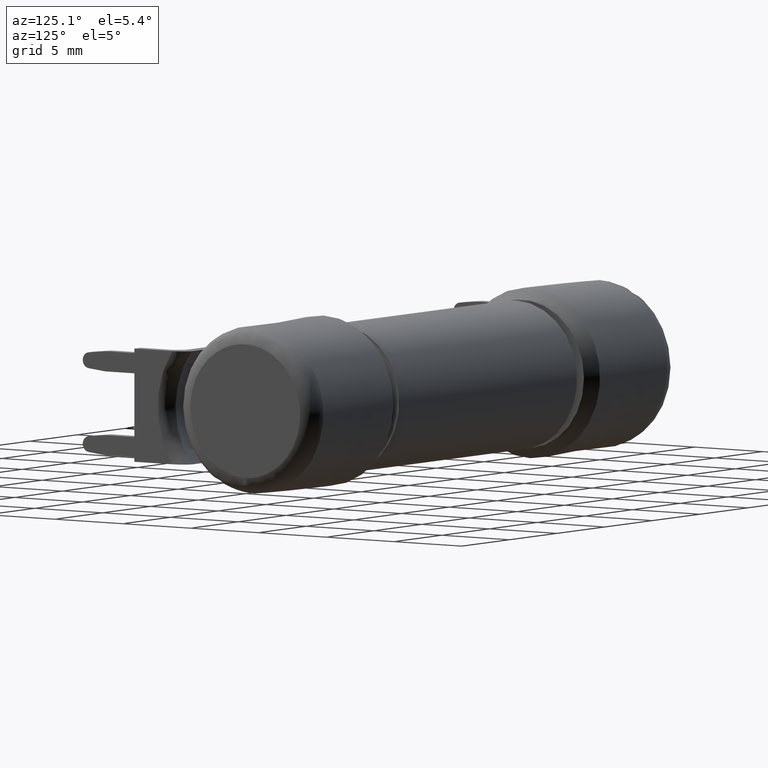
[diagram: clean part render]
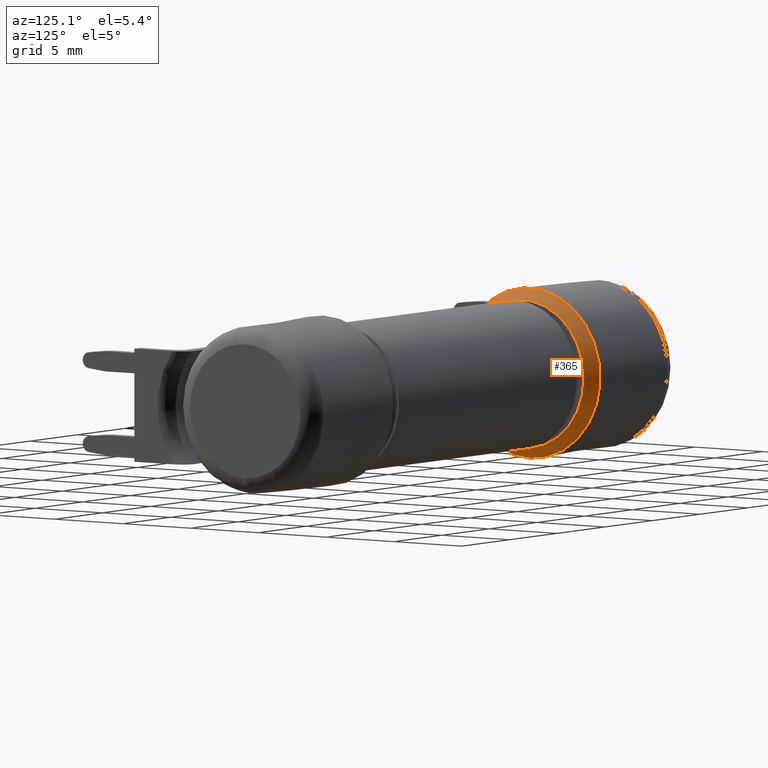
[diagram: same view with one face highlighted and labeled with its STEP entity id]
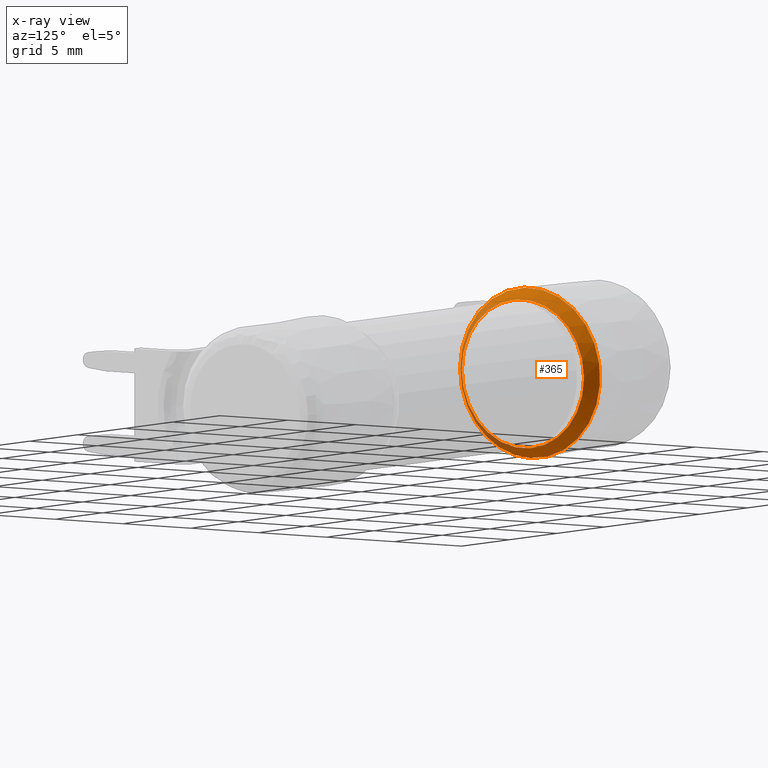
[diagram: x-ray of the same camera — body ghosted, the highlighted face saturated]
A machine part, auxiliary view. The second image highlights one B-rep face of the part: STEP entity #365.
The next image is the same camera in x-ray: the body ghosted, the highlighted face saturated — about 13% of this face is hidden behind the body in this view.
In plain terms, the highlighted conical surface has half-angle 40.776 deg.
Its self-contained STEP definition (entity closure, byte-faithful):
#40 = ORIENTED_EDGE ( 'NONE', *, *, #1985, .T. ) ;
#226 = VERTEX_POINT ( 'NONE', #458 ) ;
#241 = AXIS2_PLACEMENT_3D ( 'NONE', #894, #2367, #1097 ) ;
#365 = ADVANCED_FACE ( 'NONE', ( #2143, #1318 ), #2225, .T. ) ;
#458 = CARTESIAN_POINT ( 'NONE',  ( 0.3158093640473546000, -0.1774133951520254800, -7.080191283638513000E-017 ) ) ;
#804 = CARTESIAN_POINT ( 'NONE',  ( 0.3158093640473546000, 6.749336210412787900E-017, -7.080191283638513000E-017 ) ) ;
#834 = VERTEX_POINT ( 'NONE', #1763 ) ;
#894 = CARTESIAN_POINT ( 'NONE',  ( 0.2859999999998755800, 6.248193611427030900E-017, -6.094018143918924700E-017 ) ) ;
#1011 = DIRECTION ( 'NONE',  ( 0.0000000000000000000, -1.000000000000000000, 0.0000000000000000000 ) ) ;
#1050 = EDGE_LOOP ( 'NONE', ( #40 ) ) ;
#1097 = DIRECTION ( 'NONE',  ( 0.0000000000000000000, -4.163336342301992500E-017, -1.000000000000000000 ) ) ;
#1129 = AXIS2_PLACEMENT_3D ( 'NONE', #1990, #1969, #1317 ) ;
#1214 = CIRCLE ( 'NONE', #1311, 0.1774133951520255300 ) ;
#1232 = ORIENTED_EDGE ( 'NONE', *, *, #1567, .F. ) ;
#1259 = EDGE_LOOP ( 'NONE', ( #1232 ) ) ;
#1311 = AXIS2_PLACEMENT_3D ( 'NONE', #804, #2280, #1011 ) ;
#1317 = DIRECTION ( 'NONE',  ( 1.681158303923425300E-016, -1.000000000000000000, 0.0000000000000000000 ) ) ;
#1318 = FACE_OUTER_BOUND ( 'NONE', #1259, .T. ) ;
#1567 = EDGE_CURVE ( 'NONE', #834, #834, #1695, .T. ) ;
#1695 = CIRCLE ( 'NONE', #241, 0.2031224533808407000 ) ;
#1763 = CARTESIAN_POINT ( 'NONE',  ( 0.2859999999998755800, 5.402526519329034900E-017, -0.2031224533808407800 ) ) ;
#1969 = DIRECTION ( 'NONE',  ( -1.000000000000000000, -1.681158303923425300E-016, 8.405791519617126500E-017 ) ) ;
#1985 = EDGE_CURVE ( 'NONE', #226, #226, #1214, .T. ) ;
#1990 = CARTESIAN_POINT ( 'NONE',  ( 0.2860000000043514400, 6.248193611457076600E-017, -6.829619984160658000E-017 ) ) ;
#2143 = FACE_BOUND ( 'NONE', #1050, .T. ) ;
#2225 = CONICAL_SURFACE ( 'NONE', #1129, 0.2031224533769943900, 0.7116771378659883000 ) ;
#2280 = DIRECTION ( 'NONE',  ( -1.000000000000000000, -1.681158303923425300E-016, 8.405791519617126500E-017 ) ) ;
#2367 = DIRECTION ( 'NONE',  ( -1.000000000000000000, -6.712593418073768800E-017, 1.168039247375418900E-016 ) ) ;